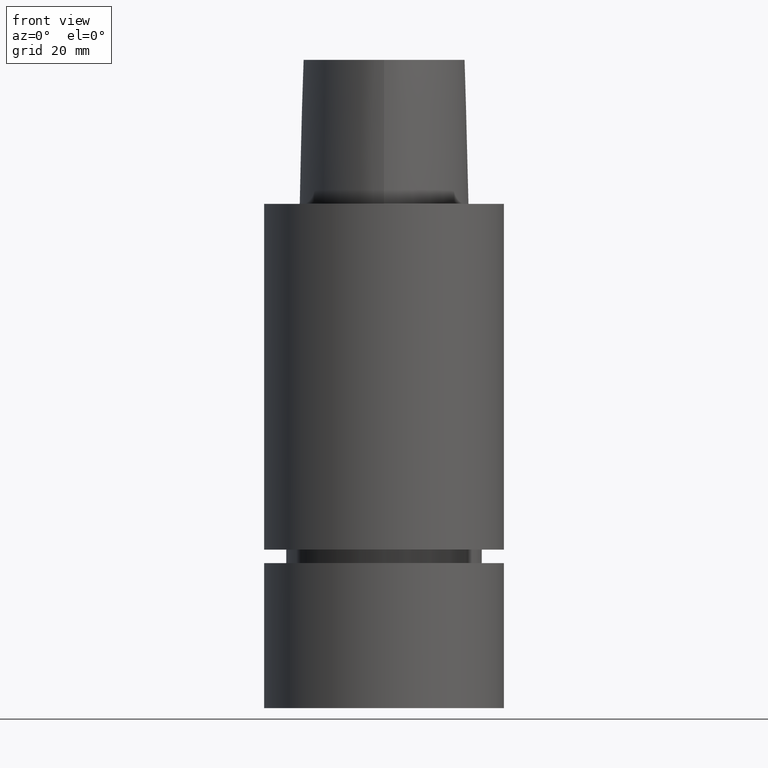
[diagram: clean part render]
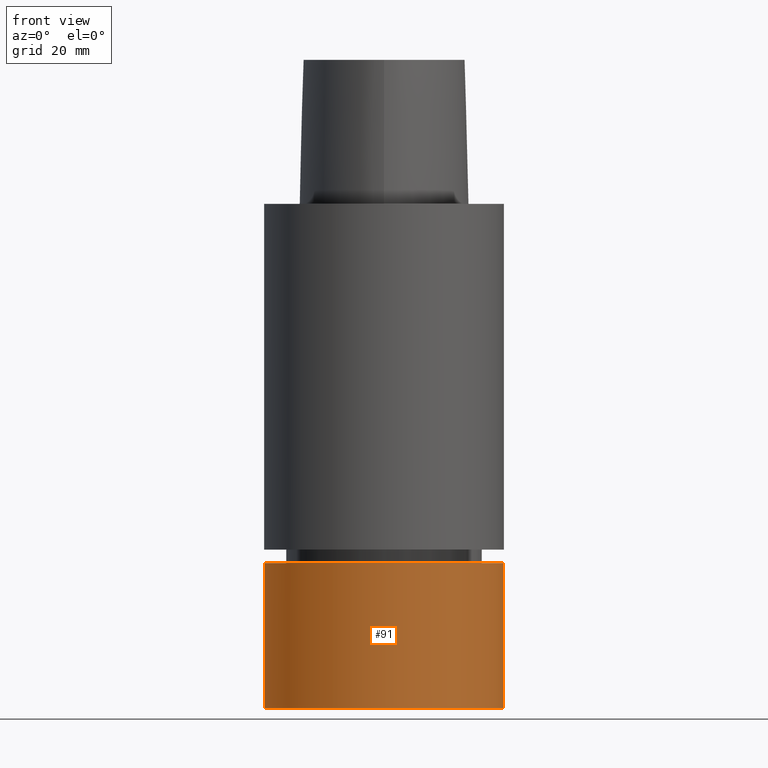
[diagram: same view with one face highlighted and labeled with its STEP entity id]
A machine part, front view. The second image highlights one B-rep face of the part: STEP entity #91.
In plain terms, the highlighted cylindrical surface (bore or boss wall) has radius 25 mm, axis along (0, 0, -1).
Its self-contained STEP definition (entity closure, byte-faithful):
#91=ADVANCED_FACE('Unnamed[1]',(#191,#192),#193,.T.);
#120=EDGE_CURVE('Unnamed[1]',#235,#235,#236,.T.);
#122=EDGE_CURVE('Unnamed[1]',#238,#238,#239,.T.);
#191=FACE_BOUND('',#460,.T.);
#192=FACE_BOUND('',#461,.T.);
#193=CYLINDRICAL_SURFACE('',#462,25.0);
#235=VERTEX_POINT('',#898);
#236=CIRCLE('',#899,25.0);
#238=VERTEX_POINT('',#902);
#239=CIRCLE('',#903,25.0);
#460=EDGE_LOOP('',(#950));
#461=EDGE_LOOP('',(#951));
#462=AXIS2_PLACEMENT_3D('',#952,#953,#954);
#898=CARTESIAN_POINT('',(6.4293956955236E-015,25.0,-105.0));
#899=AXIS2_PLACEMENT_3D('',#1002,#1003,#1004);
#902=CARTESIAN_POINT('',(4.5801790288111E-015,25.0,-74.8));
#903=AXIS2_PLACEMENT_3D('',#1005,#1006,#1007);
#950=ORIENTED_EDGE('',*,*,#120,.F.);
#951=ORIENTED_EDGE('',*,*,#122,.T.);
#952=CARTESIAN_POINT('',(5.50478736216735E-015,1.10095747243347E-014,-89.9));
#953=DIRECTION('',(6.12323399573677E-017,1.22464679914735E-016,-1.0));
#954=DIRECTION('',(-1.23259516440783E-032,1.0,1.22464679914735E-016));
#1002=CARTESIAN_POINT('',(6.4293956955236E-015,1.28587913910472E-014,-105.0));
#1003=DIRECTION('',(6.12323399573677E-017,1.22464679914735E-016,-1.0));
#1004=DIRECTION('',(-1.23259516440783E-032,1.0,1.22464679914735E-016));
#1005=CARTESIAN_POINT('',(4.5801790288111E-015,9.1603580576222E-015,-74.8));
#1006=DIRECTION('',(6.12323399573677E-017,1.22464679914735E-016,-1.0));
#1007=DIRECTION('',(-1.23259516440783E-032,1.0,1.22464679914735E-016));